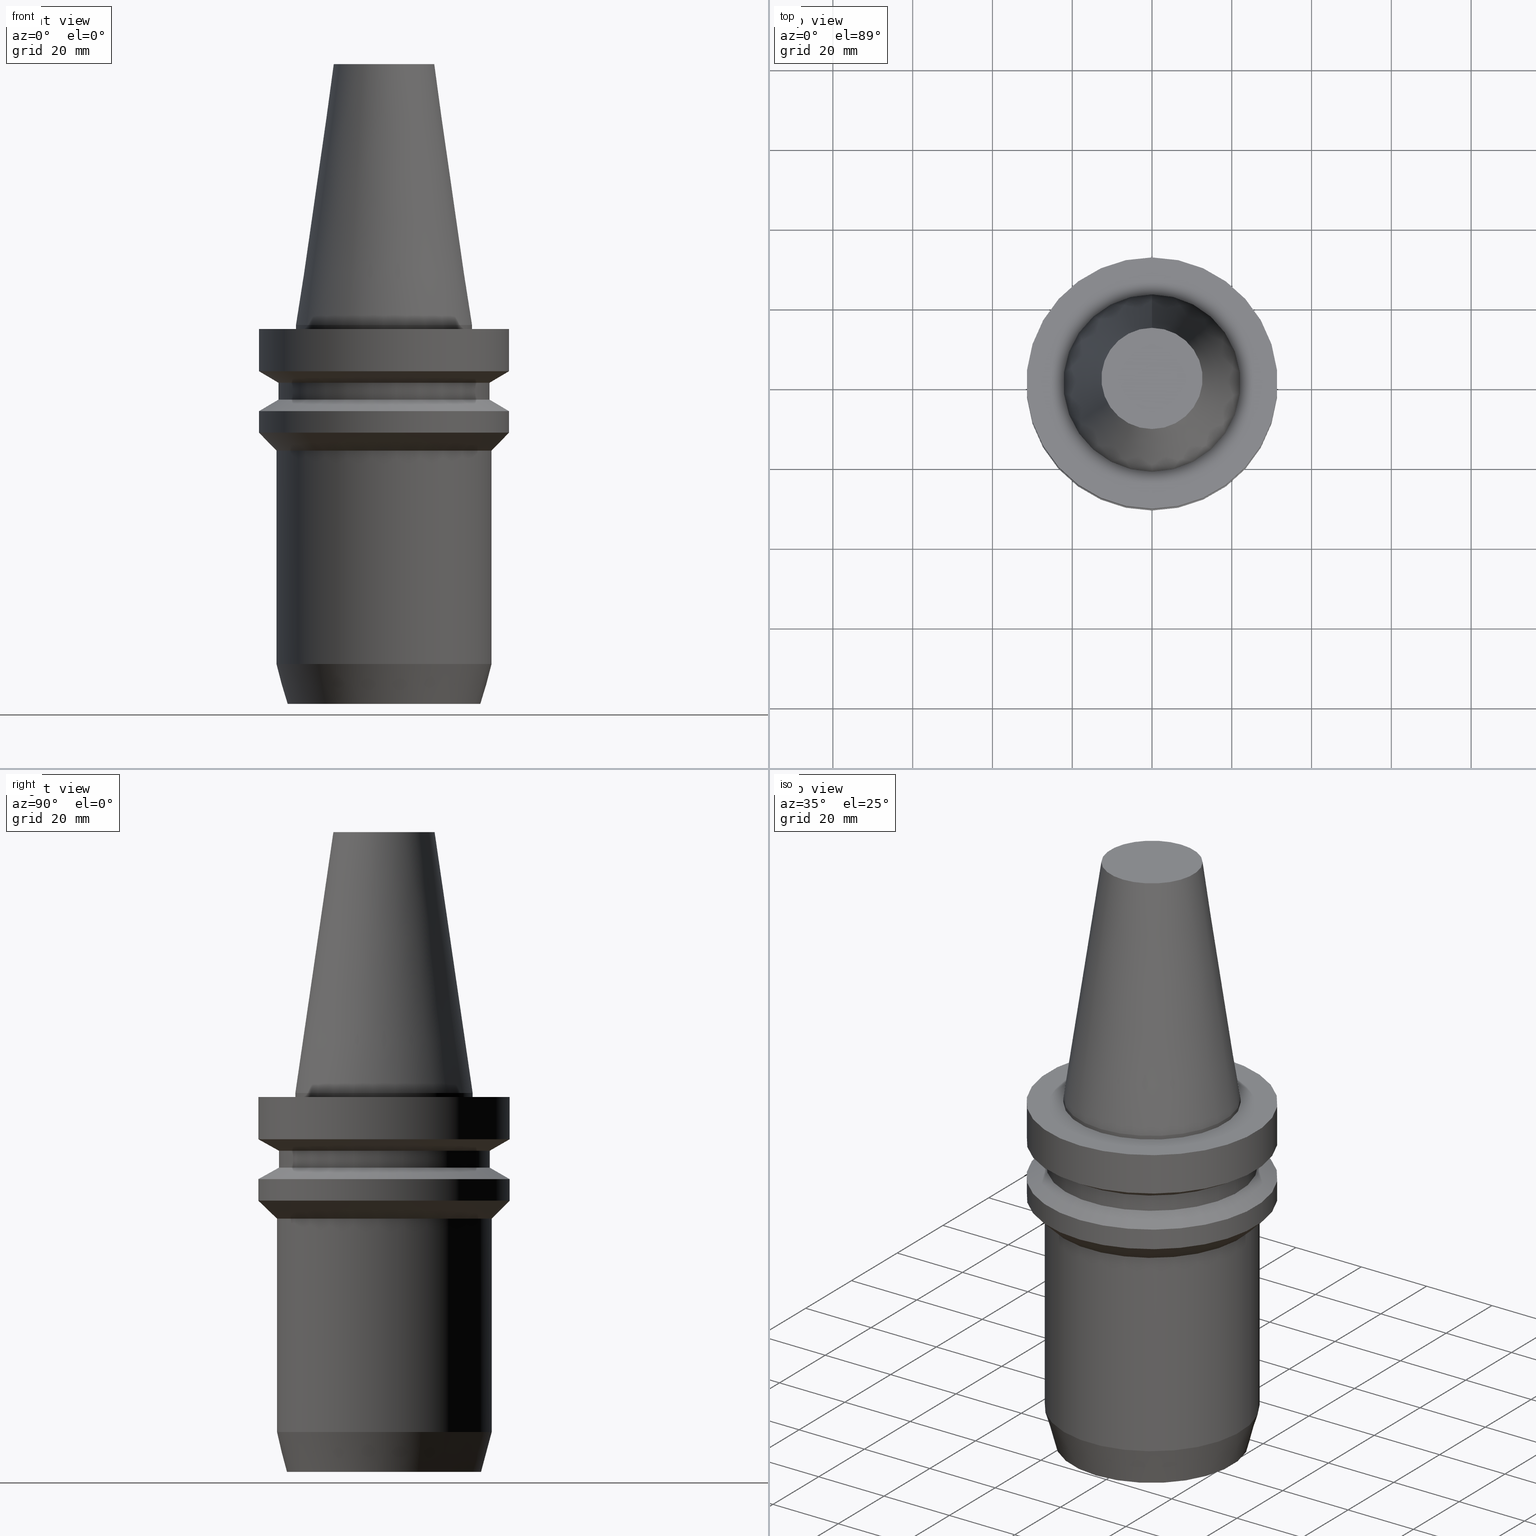
[diagram: canonical four-view strip — front | top / right | iso, engineering-drawing reading convention]
A machine part, canonical four-view strip (front | top / right | iso — engineering-drawing reading convention). The complete STEP part file that produces these views, byte-faithful:
ISO-10303-21;
HEADER;
FILE_DESCRIPTION((''),'1');
FILE_NAME('//Big_tech03/bigt/Translate/21_\X2\8F2A90ED7DDA\X0\-DXF/31_\X2\30E130AC30B730F330AF30ED30BF30C330D430F330B030DB30EB30C0\X0\ MGT/01_\X2\672C4F53\X0\/BBT/BBT40/BBT40-MGT20-95.stp','2012-05-18T05:09:44',(''),(''),'Spatial Interop R18','Kubotek KeyCreator V8.5.1 (14335)',' ');
FILE_SCHEMA(('CONFIG_CONTROL_DESIGN'));
ENDSEC;
DATA;
#1=DESIGN_CONTEXT('',#27,'design');
#2=APPLICATION_PROTOCOL_DEFINITION('INTERNATIONAL STANDARD','config_control_design',1994,#27);
#3=PRODUCT_CATEGORY_RELATIONSHIP('NONE','NONE',#28,#29);
#4=DATE_AND_TIME(#30,#31);
#5=DATE_TIME_ROLE('creation_date');
#6=DATE_TIME_ROLE('classification_date');
#7=PERSON_AND_ORGANIZATION_ROLE('creator');
#8=PERSON_AND_ORGANIZATION_ROLE('design_supplier');
#9=PERSON_AND_ORGANIZATION_ROLE('classification_officer');
#10=PERSON_AND_ORGANIZATION_ROLE('design_owner');
#11=APPROVAL_PERSON_ORGANIZATION(#32,#33,#34);
#12=APPROVAL_DATE_TIME(#4,#33);
#13=CC_DESIGN_APPROVAL(#33,(#35,#36,#37));
#14=CC_DESIGN_DATE_AND_TIME_ASSIGNMENT(#4,#5,(#37));
#15=CC_DESIGN_DATE_AND_TIME_ASSIGNMENT(#4,#6,(#35));
#16=CC_DESIGN_PERSON_AND_ORGANIZATION_ASSIGNMENT(#32,#10,(#38));
#17=CC_DESIGN_PERSON_AND_ORGANIZATION_ASSIGNMENT(#32,#7,(#37));
#18=CC_DESIGN_PERSON_AND_ORGANIZATION_ASSIGNMENT(#32,#7,(#36));
#19=CC_DESIGN_PERSON_AND_ORGANIZATION_ASSIGNMENT(#32,#8,(#36));
#20=CC_DESIGN_SECURITY_CLASSIFICATION(#35,(#36));
#21=CC_DESIGN_PERSON_AND_ORGANIZATION_ASSIGNMENT(#32,#9,(#35));
#22=SHAPE_DEFINITION_REPRESENTATION(#39,#40);
#23= (GEOMETRIC_REPRESENTATION_CONTEXT(3)GLOBAL_UNCERTAINTY_ASSIGNED_CONTEXT((#43))GLOBAL_UNIT_ASSIGNED_CONTEXT((#45,#46,#47))REPRESENTATION_CONTEXT('NONE','WORKSPACE'));
#27=APPLICATION_CONTEXT('CONFIGURATION CONTROLLED 3D DESIGNS OF MECHANICAL PARTS AND ASSEMBLIES');
#28=PRODUCT_CATEGORY('part','NONE');
#29=PRODUCT_RELATED_PRODUCT_CATEGORY('detail',' ',(#38));
#30=CALENDAR_DATE(2012,18,4);
#31=LOCAL_TIME(14,9,44.0,#49);
#32=PERSON_AND_ORGANIZATION(#50,#51);
#33=APPROVAL(#52,'SOLID MODEL');
#34=APPROVAL_ROLE('APPROVED');
#35=SECURITY_CLASSIFICATION('','',#53);
#36=PRODUCT_DEFINITION_FORMATION_WITH_SPECIFIED_SOURCE(' ','NONE',#38,.NOT_KNOWN.);
#37=PRODUCT_DEFINITION('NONE','NONE',#36,#1);
#38=PRODUCT('1','1','PART-1-DESC',(#54));
#39=PRODUCT_DEFINITION_SHAPE('NONE','NONE',#37);
#40=ADVANCED_BREP_SHAPE_REPRESENTATION('1',(#55,#56),#23);
#43=UNCERTAINTY_MEASURE_WITH_UNIT(LENGTH_MEASURE(1.0E-006),#45,'','');
#45= (CONVERSION_BASED_UNIT('MILLIMETRE',#59)LENGTH_UNIT()NAMED_UNIT(#62));
#46= (NAMED_UNIT(#64)PLANE_ANGLE_UNIT()SI_UNIT($,.RADIAN.));
#47= (NAMED_UNIT(#64)SOLID_ANGLE_UNIT()SI_UNIT($,.STERADIAN.));
#49=COORDINATED_UNIVERSAL_TIME_OFFSET(9,0,.AHEAD.);
#50=PERSON('','UNSPECIFIED',$,$,$,$);
#51=ORGANIZATION('UNSPECIFIED','UNSPECIFIED','UNSPECIFIED');
#52=APPROVAL_STATUS('approved');
#53=SECURITY_CLASSIFICATION_LEVEL('unclassified');
#54=MECHANICAL_CONTEXT('',#27,'mechanical');
#55=MANIFOLD_SOLID_BREP('1',#70);
#56=AXIS2_PLACEMENT_3D('',#71,#72,#73);
#59=LENGTH_MEASURE_WITH_UNIT(LENGTH_MEASURE(1.0),#74);
#62=DIMENSIONAL_EXPONENTS(1.0,0.0,0.0,0.0,0.0,0.0,0.0);
#64=DIMENSIONAL_EXPONENTS(0.0,0.0,0.0,0.0,0.0,0.0,0.0);
#70=CLOSED_SHELL('',(#75,#76,#77,#78,#79,#80,#81,#82,#83,#84,#85,#86,#87));
#71=CARTESIAN_POINT('',(0.0,0.0,0.0));
#72=DIRECTION('',(0.0,0.0,1.0));
#73=DIRECTION('',(1.0,0.0,0.0));
#74= (NAMED_UNIT(#62)LENGTH_UNIT()SI_UNIT(.MILLI.,.METRE.));
#75=ADVANCED_FACE('',(#89),#90,.T.);
#76=ADVANCED_FACE('',(#91,#92),#93,.T.);
#77=ADVANCED_FACE('',(#94,#95),#96,.T.);
#78=ADVANCED_FACE('',(#97,#98),#99,.T.);
#79=ADVANCED_FACE('',(#100,#101),#102,.T.);
#80=ADVANCED_FACE('',(#103,#104),#105,.T.);
#81=ADVANCED_FACE('',(#106,#107),#108,.T.);
#82=ADVANCED_FACE('',(#109,#110),#111,.T.);
#83=ADVANCED_FACE('',(#112,#113),#114,.T.);
#84=ADVANCED_FACE('',(#115,#116),#117,.T.);
#85=ADVANCED_FACE('',(#118,#119),#120,.T.);
#86=ADVANCED_FACE('',(#121),#122,.T.);
#87=ADVANCED_FACE('',(#123,#124),#125,.T.);
#89=FACE_OUTER_BOUND('',#126,.T.);
#90=PLANE('',#127);
#91=FACE_BOUND('',#128,.T.);
#92=FACE_BOUND('',#129,.T.);
#93=CONICAL_SURFACE('',#130,17.4562500026599,0.144812498159292);
#94=FACE_OUTER_BOUND('',#131,.T.);
#95=FACE_BOUND('',#132,.T.);
#96=PLANE('',#133);
#97=FACE_BOUND('',#134,.T.);
#98=FACE_BOUND('',#135,.T.);
#99=CYLINDRICAL_SURFACE('',#136,31.5);
#100=FACE_BOUND('',#137,.T.);
#101=FACE_BOUND('',#138,.T.);
#102=CONICAL_SURFACE('',#139,29.0,1.04719755058882);
#103=FACE_BOUND('',#140,.T.);
#104=FACE_BOUND('',#141,.T.);
#105=CYLINDRICAL_SURFACE('',#142,26.5);
#106=FACE_BOUND('',#143,.T.);
#107=FACE_BOUND('',#144,.T.);
#108=CONICAL_SURFACE('',#145,29.0,1.04719755058882);
#109=FACE_BOUND('',#146,.T.);
#110=FACE_BOUND('',#147,.T.);
#111=CYLINDRICAL_SURFACE('',#148,31.5);
#112=FACE_BOUND('',#149,.T.);
#113=FACE_BOUND('',#150,.T.);
#114=CONICAL_SURFACE('',#151,29.25,0.785398163397448);
#115=FACE_BOUND('',#152,.T.);
#116=FACE_BOUND('',#153,.T.);
#117=CYLINDRICAL_SURFACE('',#154,27.0);
#118=FACE_BOUND('',#155,.T.);
#119=FACE_BOUND('',#156,.T.);
#120=CONICAL_SURFACE('',#157,25.6602540369655,0.261799387417658);
#121=FACE_OUTER_BOUND('',#158,.T.);
#122=PLANE('',#159);
#123=FACE_BOUND('',#160,.T.);
#124=FACE_BOUND('',#161,.T.);
#125=CYLINDRICAL_SURFACE('',#162,22.225);
#126=EDGE_LOOP('',(#163));
#127=AXIS2_PLACEMENT_3D('',#164,#165,#166);
#128=EDGE_LOOP('',(#167));
#129=EDGE_LOOP('',(#168));
#130=AXIS2_PLACEMENT_3D('',#169,#170,#171);
#131=EDGE_LOOP('',(#172));
#132=EDGE_LOOP('',(#173));
#133=AXIS2_PLACEMENT_3D('',#174,#175,#176);
#134=EDGE_LOOP('',(#177));
#135=EDGE_LOOP('',(#178));
#136=AXIS2_PLACEMENT_3D('',#179,#180,#181);
#137=EDGE_LOOP('',(#182));
#138=EDGE_LOOP('',(#183));
#139=AXIS2_PLACEMENT_3D('',#184,#185,#186);
#140=EDGE_LOOP('',(#187));
#141=EDGE_LOOP('',(#188));
#142=AXIS2_PLACEMENT_3D('',#189,#190,#191);
#143=EDGE_LOOP('',(#192));
#144=EDGE_LOOP('',(#193));
#145=AXIS2_PLACEMENT_3D('',#194,#195,#196);
#146=EDGE_LOOP('',(#197));
#147=EDGE_LOOP('',(#198));
#148=AXIS2_PLACEMENT_3D('',#199,#200,#201);
#149=EDGE_LOOP('',(#202));
#150=EDGE_LOOP('',(#203));
#151=AXIS2_PLACEMENT_3D('',#204,#205,#206);
#152=EDGE_LOOP('',(#207));
#153=EDGE_LOOP('',(#208));
#154=AXIS2_PLACEMENT_3D('',#209,#210,#211);
#155=EDGE_LOOP('',(#212));
#156=EDGE_LOOP('',(#213));
#157=AXIS2_PLACEMENT_3D('',#214,#215,#216);
#158=EDGE_LOOP('',(#217));
#159=AXIS2_PLACEMENT_3D('',#218,#219,#220);
#160=EDGE_LOOP('',(#221));
#161=EDGE_LOOP('',(#222));
#162=AXIS2_PLACEMENT_3D('',#223,#224,#225);
#163=ORIENTED_EDGE('',*,*,#226,.F.);
#164=CARTESIAN_POINT('',(-4.00459503321185E-015,6.34375000265984,65.4));
#165=DIRECTION('',(-6.12323399573677E-017,-1.22464679914735E-016,1.0));
#166=DIRECTION('',(1.23259516440783E-032,-1.0,-1.22464679914735E-016));
#167=ORIENTED_EDGE('',*,*,#227,.F.);
#168=ORIENTED_EDGE('',*,*,#226,.T.);
#169=CARTESIAN_POINT('',(-2.00229751660592E-015,-4.00459503321184E-015,32.7));
#170=DIRECTION('',(6.12323399573677E-017,1.22464679914735E-016,-1.0));
#171=DIRECTION('',(-1.23259516440783E-032,1.0,1.22464679914735E-016));
#172=ORIENTED_EDGE('',*,*,#228,.F.);
#173=ORIENTED_EDGE('',*,*,#229,.T.);
#174=CARTESIAN_POINT('',(6.12323399573673E-017,26.8625,-0.999999999999997));
#175=DIRECTION('',(-6.12323399573677E-017,-1.22464679914735E-016,1.0));
#176=DIRECTION('',(1.23259516440783E-032,-1.0,-1.22464679914735E-016));
#177=ORIENTED_EDGE('',*,*,#230,.F.);
#178=ORIENTED_EDGE('',*,*,#228,.T.);
#179=CARTESIAN_POINT('',(3.85763741731416E-016,7.71527483462832E-016,-6.3));
#180=DIRECTION('',(-6.12323399573677E-017,-1.22464679914735E-016,1.0));
#181=DIRECTION('',(-1.23259516440783E-032,1.0,1.22464679914735E-016));
#182=ORIENTED_EDGE('',*,*,#231,.F.);
#183=ORIENTED_EDGE('',*,*,#230,.T.);
#184=CARTESIAN_POINT('',(7.9867641352326E-016,1.59735282704652E-015,-13.043375675));
#185=DIRECTION('',(-6.12323399573677E-017,-1.22464679914735E-016,1.0));
#186=DIRECTION('',(-1.23259516440783E-032,1.0,1.22464679914735E-016));
#187=ORIENTED_EDGE('',*,*,#232,.F.);
#188=ORIENTED_EDGE('',*,*,#231,.T.);
#189=CARTESIAN_POINT('',(1.0164568432923E-015,2.03291368658461E-015,-16.6));
#190=DIRECTION('',(-6.12323399573677E-017,-1.22464679914735E-016,1.0));
#191=DIRECTION('',(-1.23259516440783E-032,1.0,1.22464679914735E-016));
#192=ORIENTED_EDGE('',*,*,#233,.F.);
#193=ORIENTED_EDGE('',*,*,#232,.T.);
#194=CARTESIAN_POINT('',(1.23423727306135E-015,2.46847454612269E-015,-20.156624325));
#195=DIRECTION('',(6.12323399573677E-017,1.22464679914735E-016,-1.0));
#196=DIRECTION('',(-1.23259516440783E-032,1.0,1.22464679914735E-016));
#197=ORIENTED_EDGE('',*,*,#234,.F.);
#198=ORIENTED_EDGE('',*,*,#233,.T.);
#199=CARTESIAN_POINT('',(1.48794586096403E-015,2.97589172192807E-015,-24.3));
#200=DIRECTION('',(-6.12323399573677E-017,-1.22464679914735E-016,1.0));
#201=DIRECTION('',(-1.23259516440783E-032,1.0,1.22464679914735E-016));
#202=ORIENTED_EDGE('',*,*,#235,.F.);
#203=ORIENTED_EDGE('',*,*,#234,.T.);
#204=CARTESIAN_POINT('',(1.791045943753E-015,3.58209188750601E-015,-29.25));
#205=DIRECTION('',(-6.12323399573677E-017,-1.22464679914735E-016,1.0));
#206=DIRECTION('',(-1.23259516440783E-032,1.0,1.22464679914735E-016));
#207=ORIENTED_EDGE('',*,*,#236,.F.);
#208=ORIENTED_EDGE('',*,*,#235,.T.);
#209=CARTESIAN_POINT('',(3.56678380184862E-015,7.13356760369725E-015,-58.24999998909));
#210=DIRECTION('',(-6.12323399573677E-017,-1.22464679914735E-016,1.0));
#211=DIRECTION('',(-1.23259516440783E-032,1.0,1.22464679914735E-016));
#212=ORIENTED_EDGE('',*,*,#237,.F.);
#213=ORIENTED_EDGE('',*,*,#236,.T.);
#214=CARTESIAN_POINT('',(5.51091059549505E-015,1.10218211909901E-014,-89.99999998909));
#215=DIRECTION('',(-6.12323399573677E-017,-1.22464679914735E-016,1.0));
#216=DIRECTION('',(-1.23259516440783E-032,1.0,1.22464679914735E-016));
#217=ORIENTED_EDGE('',*,*,#237,.T.);
#218=CARTESIAN_POINT('',(5.81707229594993E-015,12.1602540369655,-95.0));
#219=DIRECTION('',(6.12323399573677E-017,1.22464679914735E-016,-1.0));
#220=DIRECTION('',(-1.23259516440783E-032,1.0,1.22464679914735E-016));
#221=ORIENTED_EDGE('',*,*,#229,.F.);
#222=ORIENTED_EDGE('',*,*,#227,.T.);
#223=CARTESIAN_POINT('',(3.06161699786837E-017,6.12323399573675E-017,-0.499999999999998));
#224=DIRECTION('',(-6.12323399573677E-017,-1.22464679914735E-016,1.0));
#225=DIRECTION('',(-1.23259516440783E-032,1.0,1.22464679914735E-016));
#226=EDGE_CURVE('',#238,#238,#239,.T.);
#227=EDGE_CURVE('',#240,#240,#241,.T.);
#228=EDGE_CURVE('',#242,#242,#243,.T.);
#229=EDGE_CURVE('',#244,#244,#245,.T.);
#230=EDGE_CURVE('',#246,#246,#247,.T.);
#231=EDGE_CURVE('',#248,#248,#249,.T.);
#232=EDGE_CURVE('',#250,#250,#251,.T.);
#233=EDGE_CURVE('',#252,#252,#253,.T.);
#234=EDGE_CURVE('',#254,#254,#255,.T.);
#235=EDGE_CURVE('',#256,#256,#257,.T.);
#236=EDGE_CURVE('',#258,#258,#259,.T.);
#237=EDGE_CURVE('',#260,#260,#261,.T.);
#238=VERTEX_POINT('',#262);
#239=CIRCLE('',#263,12.6875000053197);
#240=VERTEX_POINT('',#264);
#241=CIRCLE('',#265,22.225);
#242=VERTEX_POINT('',#266);
#243=CIRCLE('',#267,31.5);
#244=VERTEX_POINT('',#268);
#245=CIRCLE('',#269,22.225);
#246=VERTEX_POINT('',#270);
#247=CIRCLE('',#271,31.5);
#248=VERTEX_POINT('',#272);
#249=CIRCLE('',#273,26.5);
#250=VERTEX_POINT('',#274);
#251=CIRCLE('',#275,26.5);
#252=VERTEX_POINT('',#276);
#253=CIRCLE('',#277,31.5);
#254=VERTEX_POINT('',#278);
#255=CIRCLE('',#279,31.5);
#256=VERTEX_POINT('',#280);
#257=CIRCLE('',#281,27.0);
#258=VERTEX_POINT('',#282);
#259=CIRCLE('',#283,27.0);
#260=VERTEX_POINT('',#284);
#261=CIRCLE('',#285,24.320508073931);
#262=CARTESIAN_POINT('',(-4.00459503321185E-015,12.6875000053197,65.4));
#263=AXIS2_PLACEMENT_3D('',#286,#287,#288);
#264=CARTESIAN_POINT('',(-4.6376452915748E-031,22.225,5.82177751110499E-015));
#265=AXIS2_PLACEMENT_3D('',#289,#290,#291);
#266=CARTESIAN_POINT('',(6.12323399573673E-017,31.5,-0.999999999999996));
#267=AXIS2_PLACEMENT_3D('',#292,#293,#294);
#268=CARTESIAN_POINT('',(6.12323399573674E-017,22.225,-0.999999999999997));
#269=AXIS2_PLACEMENT_3D('',#295,#296,#297);
#270=CARTESIAN_POINT('',(7.10295143505464E-016,31.5,-11.6));
#271=AXIS2_PLACEMENT_3D('',#298,#299,#300);
#272=CARTESIAN_POINT('',(8.87057683541055E-016,26.5,-14.48675135));
#273=AXIS2_PLACEMENT_3D('',#301,#302,#303);
#274=CARTESIAN_POINT('',(1.14585600304355E-015,26.5,-18.71324865));
#275=AXIS2_PLACEMENT_3D('',#304,#305,#306);
#276=CARTESIAN_POINT('',(1.32261854307914E-015,31.5,-21.6));
#277=AXIS2_PLACEMENT_3D('',#307,#308,#309);
#278=CARTESIAN_POINT('',(1.65327317884893E-015,31.5,-27.0));
#279=AXIS2_PLACEMENT_3D('',#310,#311,#312);
#280=CARTESIAN_POINT('',(1.92881870865708E-015,27.0,-31.5));
#281=AXIS2_PLACEMENT_3D('',#313,#314,#315);
#282=CARTESIAN_POINT('',(5.20474889504017E-015,27.0,-84.9999999781801));
#283=AXIS2_PLACEMENT_3D('',#316,#317,#318);
#284=CARTESIAN_POINT('',(5.81707229594993E-015,24.320508073931,-95.0));
#285=AXIS2_PLACEMENT_3D('',#319,#320,#321);
#286=CARTESIAN_POINT('',(-4.00459503321185E-015,-8.00919006642369E-015,65.4));
#287=DIRECTION('',(6.12323399573677E-017,1.22464679914735E-016,-1.0));
#288=DIRECTION('',(-1.23259516440783E-032,1.0,1.22464679914735E-016));
#289=CARTESIAN_POINT('',(-1.898172443945E-031,-3.79634488788999E-031,3.09995085157055E-015));
#290=DIRECTION('',(6.12323399573677E-017,1.22464679914735E-016,-1.0));
#291=DIRECTION('',(-1.23259516440783E-032,1.0,1.22464679914735E-016));
#292=CARTESIAN_POINT('',(6.12323399573677E-017,1.22464679914735E-016,-1.0));
#293=DIRECTION('',(6.12323399573677E-017,1.22464679914735E-016,-1.0));
#294=DIRECTION('',(-1.23259516440783E-032,1.0,1.22464679914735E-016));
#295=CARTESIAN_POINT('',(6.12323399573677E-017,1.22464679914735E-016,-1.0));
#296=DIRECTION('',(6.12323399573677E-017,1.22464679914735E-016,-1.0));
#297=DIRECTION('',(-1.23259516440783E-032,1.0,1.22464679914735E-016));
#298=CARTESIAN_POINT('',(7.10295143505465E-016,1.42059028701093E-015,-11.6));
#299=DIRECTION('',(6.12323399573677E-017,1.22464679914735E-016,-1.0));
#300=DIRECTION('',(-1.23259516440783E-032,1.0,1.22464679914735E-016));
#301=CARTESIAN_POINT('',(8.87057683541055E-016,1.77411536708211E-015,-14.48675135));
#302=DIRECTION('',(6.12323399573677E-017,1.22464679914735E-016,-1.0));
#303=DIRECTION('',(-1.23259516440783E-032,1.0,1.22464679914735E-016));
#304=CARTESIAN_POINT('',(1.14585600304355E-015,2.2917120060871E-015,-18.71324865));
#305=DIRECTION('',(6.12323399573677E-017,1.22464679914735E-016,-1.0));
#306=DIRECTION('',(-1.23259516440783E-032,1.0,1.22464679914735E-016));
#307=CARTESIAN_POINT('',(1.32261854307914E-015,2.64523708615828E-015,-21.6));
#308=DIRECTION('',(6.12323399573677E-017,1.22464679914735E-016,-1.0));
#309=DIRECTION('',(-1.23259516440783E-032,1.0,1.22464679914735E-016));
#310=CARTESIAN_POINT('',(1.65327317884893E-015,3.30654635769785E-015,-27.0));
#311=DIRECTION('',(6.12323399573677E-017,1.22464679914735E-016,-1.0));
#312=DIRECTION('',(-1.23259516440783E-032,1.0,1.22464679914735E-016));
#313=CARTESIAN_POINT('',(1.92881870865708E-015,3.85763741731416E-015,-31.5));
#314=DIRECTION('',(6.12323399573677E-017,1.22464679914735E-016,-1.0));
#315=DIRECTION('',(-1.23259516440783E-032,1.0,1.22464679914735E-016));
#316=CARTESIAN_POINT('',(5.20474889504017E-015,1.04094977900803E-014,-84.9999999781801));
#317=DIRECTION('',(6.12323399573677E-017,1.22464679914735E-016,-1.0));
#318=DIRECTION('',(-1.23259516440783E-032,1.0,1.22464679914735E-016));
#319=CARTESIAN_POINT('',(5.81707229594993E-015,1.16341445918999E-014,-95.0));
#320=DIRECTION('',(6.12323399573677E-017,1.22464679914735E-016,-1.0));
#321=DIRECTION('',(-1.23259516440783E-032,1.0,1.22464679914735E-016));
ENDSEC;
END-ISO-10303-21;
